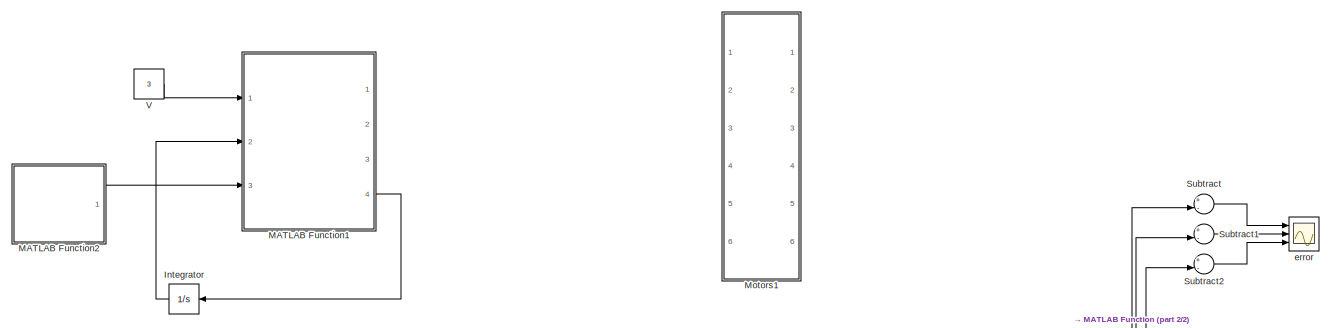
[diagram: root canvas - part 1/2, full width, top band]
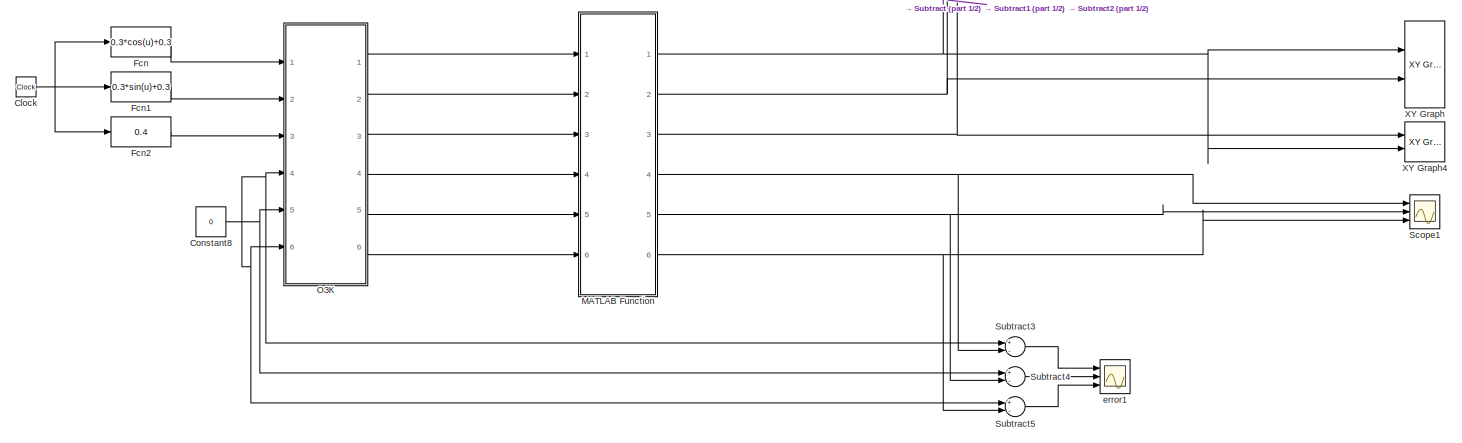
[diagram: root canvas - part 2/2, full width, bottom band]
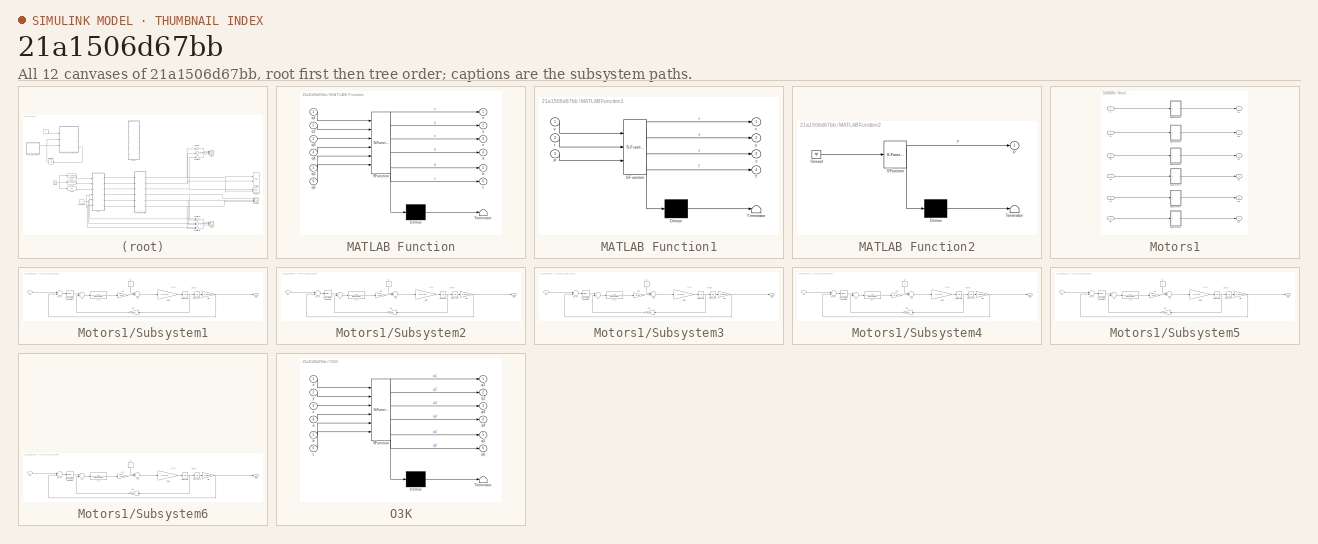
[diagram: thumbnail index - all 12 canvases of the model, root first then tree order]
MODEL slx_21a1506d67bb
KIND model
CONFIG AbsTol = auto
CONFIG EnableMultiTasking = off
CONFIG FixedStep = auto
CONFIG MaxStep = auto
CONFIG MinStep = auto
CONFIG RelTol = 1e-3
CONFIG SampleTimeConstraint = Unconstrained
CONFIG Solver = VariableStepAuto
CONFIG SolverName = VariableStepAuto
CONFIG StartTime = 0.0
CONFIG StopTime = 10
BLOCK [Clock] Clock
BLOCK [Constant] Constant8
  Value = 0
BLOCK [Fcn] Fcn
  Expr = 0.3*cos(u)+0.3
BLOCK [Fcn] Fcn1
  Expr = 0.3*sin(u)+0.3
BLOCK [Fcn] Fcn2
  Expr = 0.4
BLOCK [Integrator] Integrator
  Ports = [1, 1]
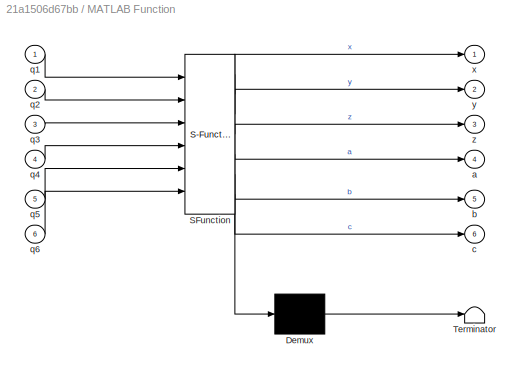
BLOCK [SubSystem] MATLAB Function
  ErrorFcn = Stateflow.Translate.translate
  PermitHierarchicalResolution = ExplicitOnly
  Ports = [6, 6]
  RequestExecContextInheritance = off
  SFBlockType = MATLAB Function
  TreatAsAtomicUnit = on
BLOCK [Demux] MATLAB Function/ Demux 
  Outputs = 1
  Ports = [1, 1]
BLOCK [S-Function] MATLAB Function/ SFunction 
  EnableBusSupport = on
  FunctionName = sf_sfun
  PortCounts = [6 7]
  Ports = [6, 7]
  SFcnIsStateOwnerBlock = off
  SFunctionDeploymentMode = off
  Tag = Stateflow S-Function main 2
BLOCK [Terminator] MATLAB Function/ Terminator 
BLOCK [Outport] MATLAB Function/a
  IconDisplay = Port number
  Port = 4
BLOCK [Outport] MATLAB Function/b
  IconDisplay = Port number
  Port = 5
BLOCK [Outport] MATLAB Function/c
  IconDisplay = Port number
  Port = 6
BLOCK [Inport] MATLAB Function/q1
  IconDisplay = Port number
BLOCK [Inport] MATLAB Function/q2
  IconDisplay = Port number
  Port = 2
BLOCK [Inport] MATLAB Function/q3
  IconDisplay = Port number
  Port = 3
BLOCK [Inport] MATLAB Function/q4
  IconDisplay = Port number
  Port = 4
BLOCK [Inport] MATLAB Function/q5
  IconDisplay = Port number
  Port = 5
BLOCK [Inport] MATLAB Function/q6
  IconDisplay = Port number
  Port = 6
BLOCK [Outport] MATLAB Function/x
  IconDisplay = Port number
BLOCK [Outport] MATLAB Function/y
  IconDisplay = Port number
  Port = 2
BLOCK [Outport] MATLAB Function/z
  IconDisplay = Port number
  Port = 3
BLOCK [SubSystem] MATLAB Function1
  ErrorFcn = Stateflow.Translate.translate
  PermitHierarchicalResolution = ExplicitOnly
  Ports = [3, 4]
  RequestExecContextInheritance = off
  SFBlockType = MATLAB Function
  TreatAsAtomicUnit = on
BLOCK [Demux] MATLAB Function1/ Demux 
  Outputs = 1
  Ports = [1, 1]
BLOCK [S-Function] MATLAB Function1/ SFunction 
  EnableBusSupport = on
  FunctionName = sf_sfun
  PortCounts = [3 5]
  Ports = [3, 5]
  SFcnIsStateOwnerBlock = off
  SFunctionDeploymentMode = off
  Tag = Stateflow S-Function main 3
BLOCK [Terminator] MATLAB Function1/ Terminator 
BLOCK [Inport] MATLAB Function1/P
  IconDisplay = Port number
  Port = 3
BLOCK [Outport] MATLAB Function1/T
  IconDisplay = Port number
  Port = 4
BLOCK [Inport] MATLAB Function1/t
  IconDisplay = Port number
  Port = 2
BLOCK [Inport] MATLAB Function1/v
  IconDisplay = Port number
BLOCK [Outport] MATLAB Function1/x
  IconDisplay = Port number
BLOCK [Outport] MATLAB Function1/y
  IconDisplay = Port number
  Port = 2
BLOCK [Outport] MATLAB Function1/z
  IconDisplay = Port number
  Port = 3
BLOCK [SubSystem] MATLAB Function2
  ErrorFcn = Stateflow.Translate.translate
  PermitHierarchicalResolution = ExplicitOnly
  Ports = [0, 1]
  RequestExecContextInheritance = off
  SFBlockType = MATLAB Function
  TreatAsAtomicUnit = on
BLOCK [Demux] MATLAB Function2/ Demux 
  Outputs = 1
  Ports = [1, 1]
BLOCK [Ground] MATLAB Function2/ Ground 
BLOCK [S-Function] MATLAB Function2/ SFunction 
  EnableBusSupport = on
  FunctionName = sf_sfun
  PortCounts = [1 2]
  Ports = [1, 2]
  SFcnIsStateOwnerBlock = off
  SFunctionDeploymentMode = off
  Tag = Stateflow S-Function main 4
BLOCK [Terminator] MATLAB Function2/ Terminator 
BLOCK [Outport] MATLAB Function2/P
  IconDisplay = Port number
BLOCK [SubSystem] Motors1
  Ports = [6, 6]
  RequestExecContextInheritance = off
BLOCK [SubSystem] Motors1/Subsystem1
  Ports = [1, 1]
  RequestExecContextInheritance = off
BLOCK [Gain] Motors1/Subsystem1/1//iR
  Gain = 1/102.5
  OutDataTypeStr = Inherit: Inherit via internal rule
  ParamDataTypeStr = Inherit: Inherit via internal rule
  SaturateOnIntegerOverflow = off
BLOCK [Sum] Motors1/Subsystem1/Add
  InputSameDT = off
  Inputs = -+
  OutDataTypeStr = Inherit: Inherit via internal rule
  Ports = [2, 1]
  SaturateOnIntegerOverflow = off
BLOCK [Reference] Motors1/Subsystem1/Discrete PID Controller  REF=simulink/Continuous/PID Controller
  Ports = [1, 1]
  SourceBlock = simulink/Continuous/PID Controller
  SourceProductBaseCode = SL
  SourceProductName = Simulink
  SourceType = PID 1dof
BLOCK [Sum] Motors1/Subsystem1/Error 
  InputSameDT = off
  Inputs = +-
  OutDataTypeStr = Inherit: Inherit via internal rule
  Ports = [2, 1]
  SaturateOnIntegerOverflow = off
BLOCK [Gain] Motors1/Subsystem1/Gain
  Gain = 1/(3.5*0.0001)
  OutDataTypeStr = Inherit: Inherit via internal rule
  ParamDataTypeStr = Inherit: Inherit via internal rule
  SaturateOnIntegerOverflow = off
BLOCK [Inport] Motors1/Subsystem1/In2
  IconDisplay = Port number
BLOCK [Integrator] Motors1/Subsystem1/Integrator
  Ports = [1, 1]
BLOCK [Integrator] Motors1/Subsystem1/Integrator1
  InitialCondition = 1.1618*102.5
  Ports = [1, 1]
BLOCK [Gain] Motors1/Subsystem1/Km
  Gain = 0.07
  OutDataTypeStr = Inherit: Inherit via internal rule
  ParamDataTypeStr = Inherit: Inherit via internal rule
  SaturateOnIntegerOverflow = off
BLOCK [Gain] Motors1/Subsystem1/Kw
  Gain = 0.07
  OutDataTypeStr = Inherit: Inherit via internal rule
  ParamDataTypeStr = Inherit: Inherit via internal rule
  SaturateOnIntegerOverflow = off
BLOCK [Constant] Motors1/Subsystem1/M 
  Value = 0
BLOCK [Outport] Motors1/Subsystem1/Out2
  IconDisplay = Port number
BLOCK [Sum] Motors1/Subsystem1/U
  InputSameDT = off
  Inputs = +-
  OutDataTypeStr = Inherit: Inherit via internal rule
  Ports = [2, 1]
  SaturateOnIntegerOverflow = off
BLOCK [TransferFcn] Motors1/Subsystem1/U->I
  Denominator = [0.0075 0.85]
BLOCK [SubSystem] Motors1/Subsystem2
  Ports = [1, 1]
  RequestExecContextInheritance = off
BLOCK [Gain] Motors1/Subsystem2/1//iR
  Gain = 1/102.5
  OutDataTypeStr = Inherit: Inherit via internal rule
  ParamDataTypeStr = Inherit: Inherit via internal rule
  SaturateOnIntegerOverflow = off
BLOCK [Sum] Motors1/Subsystem2/Add
  InputSameDT = off
  Inputs = -+
  OutDataTypeStr = Inherit: Inherit via internal rule
  Ports = [2, 1]
  SaturateOnIntegerOverflow = off
BLOCK [Reference] Motors1/Subsystem2/Discrete PID Controller  REF=simulink/Continuous/PID Controller
  Ports = [1, 1]
  SourceBlock = simulink/Continuous/PID Controller
  SourceProductBaseCode = SL
  SourceProductName = Simulink
  SourceType = PID 1dof
BLOCK [Sum] Motors1/Subsystem2/Error 
  InputSameDT = off
  Inputs = +-
  OutDataTypeStr = Inherit: Inherit via internal rule
  Ports = [2, 1]
  SaturateOnIntegerOverflow = off
BLOCK [Gain] Motors1/Subsystem2/Gain
  Gain = 1/(3.5*0.0001)
  OutDataTypeStr = Inherit: Inherit via internal rule
  ParamDataTypeStr = Inherit: Inherit via internal rule
  SaturateOnIntegerOverflow = off
BLOCK [Inport] Motors1/Subsystem2/In2
  IconDisplay = Port number
BLOCK [Integrator] Motors1/Subsystem2/Integrator
  Ports = [1, 1]
BLOCK [Integrator] Motors1/Subsystem2/Integrator1
  InitialCondition = 1.1618*102.5
  Ports = [1, 1]
BLOCK [Gain] Motors1/Subsystem2/Km
  Gain = 0.07
  OutDataTypeStr = Inherit: Inherit via internal rule
  ParamDataTypeStr = Inherit: Inherit via internal rule
  SaturateOnIntegerOverflow = off
BLOCK [Gain] Motors1/Subsystem2/Kw
  Gain = 0.07
  OutDataTypeStr = Inherit: Inherit via internal rule
  ParamDataTypeStr = Inherit: Inherit via internal rule
  SaturateOnIntegerOverflow = off
BLOCK [Constant] Motors1/Subsystem2/M 
  Value = 0
BLOCK [Outport] Motors1/Subsystem2/Out2
  IconDisplay = Port number
BLOCK [Sum] Motors1/Subsystem2/U
  InputSameDT = off
  Inputs = +-
  OutDataTypeStr = Inherit: Inherit via internal rule
  Ports = [2, 1]
  SaturateOnIntegerOverflow = off
BLOCK [TransferFcn] Motors1/Subsystem2/U->I
  Denominator = [0.0075 0.85]
BLOCK [SubSystem] Motors1/Subsystem3
  Ports = [1, 1]
  RequestExecContextInheritance = off
BLOCK [Gain] Motors1/Subsystem3/1//iR
  Gain = 1/102.5
  OutDataTypeStr = Inherit: Inherit via internal rule
  ParamDataTypeStr = Inherit: Inherit via internal rule
  SaturateOnIntegerOverflow = off
BLOCK [Sum] Motors1/Subsystem3/Add
  InputSameDT = off
  Inputs = -+
  OutDataTypeStr = Inherit: Inherit via internal rule
  Ports = [2, 1]
  SaturateOnIntegerOverflow = off
BLOCK [Reference] Motors1/Subsystem3/Discrete PID Controller  REF=simulink/Continuous/PID Controller
  Ports = [1, 1]
  SourceBlock = simulink/Continuous/PID Controller
  SourceProductBaseCode = SL
  SourceProductName = Simulink
  SourceType = PID 1dof
BLOCK [Sum] Motors1/Subsystem3/Error 
  InputSameDT = off
  Inputs = +-
  OutDataTypeStr = Inherit: Inherit via internal rule
  Ports = [2, 1]
  SaturateOnIntegerOverflow = off
BLOCK [Gain] Motors1/Subsystem3/Gain
  Gain = 1/(3.5*0.0001)
  OutDataTypeStr = Inherit: Inherit via internal rule
  ParamDataTypeStr = Inherit: Inherit via internal rule
  SaturateOnIntegerOverflow = off
BLOCK [Inport] Motors1/Subsystem3/In2
  IconDisplay = Port number
BLOCK [Integrator] Motors1/Subsystem3/Integrator
  Ports = [1, 1]
BLOCK [Integrator] Motors1/Subsystem3/Integrator1
  InitialCondition = 1.1618*102.5
  Ports = [1, 1]
BLOCK [Gain] Motors1/Subsystem3/Km
  Gain = 0.07
  OutDataTypeStr = Inherit: Inherit via internal rule
  ParamDataTypeStr = Inherit: Inherit via internal rule
  SaturateOnIntegerOverflow = off
BLOCK [Gain] Motors1/Subsystem3/Kw
  Gain = 0.07
  OutDataTypeStr = Inherit: Inherit via internal rule
  ParamDataTypeStr = Inherit: Inherit via internal rule
  SaturateOnIntegerOverflow = off
BLOCK [Constant] Motors1/Subsystem3/M 
  Value = 0
BLOCK [Outport] Motors1/Subsystem3/Out2
  IconDisplay = Port number
BLOCK [Sum] Motors1/Subsystem3/U
  InputSameDT = off
  Inputs = +-
  OutDataTypeStr = Inherit: Inherit via internal rule
  Ports = [2, 1]
  SaturateOnIntegerOverflow = off
BLOCK [TransferFcn] Motors1/Subsystem3/U->I
  Denominator = [0.0075 0.85]
BLOCK [SubSystem] Motors1/Subsystem4
  Ports = [1, 1]
  RequestExecContextInheritance = off
BLOCK [Gain] Motors1/Subsystem4/1//iR
  Gain = 1/102.5
  OutDataTypeStr = Inherit: Inherit via internal rule
  ParamDataTypeStr = Inherit: Inherit via internal rule
  SaturateOnIntegerOverflow = off
BLOCK [Sum] Motors1/Subsystem4/Add
  InputSameDT = off
  Inputs = -+
  OutDataTypeStr = Inherit: Inherit via internal rule
  Ports = [2, 1]
  SaturateOnIntegerOverflow = off
BLOCK [Reference] Motors1/Subsystem4/Discrete PID Controller  REF=simulink/Continuous/PID Controller
  Ports = [1, 1]
  SourceBlock = simulink/Continuous/PID Controller
  SourceProductBaseCode = SL
  SourceProductName = Simulink
  SourceType = PID 1dof
BLOCK [Sum] Motors1/Subsystem4/Error 
  InputSameDT = off
  Inputs = +-
  OutDataTypeStr = Inherit: Inherit via internal rule
  Ports = [2, 1]
  SaturateOnIntegerOverflow = off
BLOCK [Gain] Motors1/Subsystem4/Gain
  Gain = 1/(3.5*0.0001)
  OutDataTypeStr = Inherit: Inherit via internal rule
  ParamDataTypeStr = Inherit: Inherit via internal rule
  SaturateOnIntegerOverflow = off
BLOCK [Inport] Motors1/Subsystem4/In2
  IconDisplay = Port number
BLOCK [Integrator] Motors1/Subsystem4/Integrator
  Ports = [1, 1]
BLOCK [Integrator] Motors1/Subsystem4/Integrator1
  InitialCondition = 1.1618*102.5
  Ports = [1, 1]
BLOCK [Gain] Motors1/Subsystem4/Km
  Gain = 0.07
  OutDataTypeStr = Inherit: Inherit via internal rule
  ParamDataTypeStr = Inherit: Inherit via internal rule
  SaturateOnIntegerOverflow = off
BLOCK [Gain] Motors1/Subsystem4/Kw
  Gain = 0.07
  OutDataTypeStr = Inherit: Inherit via internal rule
  ParamDataTypeStr = Inherit: Inherit via internal rule
  SaturateOnIntegerOverflow = off
BLOCK [Constant] Motors1/Subsystem4/M 
  Value = 0
BLOCK [Outport] Motors1/Subsystem4/Out2
  IconDisplay = Port number
BLOCK [Sum] Motors1/Subsystem4/U
  InputSameDT = off
  Inputs = +-
  OutDataTypeStr = Inherit: Inherit via internal rule
  Ports = [2, 1]
  SaturateOnIntegerOverflow = off
BLOCK [TransferFcn] Motors1/Subsystem4/U->I
  Denominator = [0.0075 0.85]
BLOCK [SubSystem] Motors1/Subsystem5
  Ports = [1, 1]
  RequestExecContextInheritance = off
BLOCK [Gain] Motors1/Subsystem5/1//iR
  Gain = 1/102.5
  OutDataTypeStr = Inherit: Inherit via internal rule
  ParamDataTypeStr = Inherit: Inherit via internal rule
  SaturateOnIntegerOverflow = off
BLOCK [Sum] Motors1/Subsystem5/Add
  InputSameDT = off
  Inputs = -+
  OutDataTypeStr = Inherit: Inherit via internal rule
  Ports = [2, 1]
  SaturateOnIntegerOverflow = off
BLOCK [Reference] Motors1/Subsystem5/Discrete PID Controller  REF=simulink/Continuous/PID Controller
  Ports = [1, 1]
  SourceBlock = simulink/Continuous/PID Controller
  SourceProductBaseCode = SL
  SourceProductName = Simulink
  SourceType = PID 1dof
BLOCK [Sum] Motors1/Subsystem5/Error 
  InputSameDT = off
  Inputs = +-
  OutDataTypeStr = Inherit: Inherit via internal rule
  Ports = [2, 1]
  SaturateOnIntegerOverflow = off
BLOCK [Gain] Motors1/Subsystem5/Gain
  Gain = 1/(3.5*0.0001)
  OutDataTypeStr = Inherit: Inherit via internal rule
  ParamDataTypeStr = Inherit: Inherit via internal rule
  SaturateOnIntegerOverflow = off
BLOCK [Inport] Motors1/Subsystem5/In2
  IconDisplay = Port number
BLOCK [Integrator] Motors1/Subsystem5/Integrator
  Ports = [1, 1]
BLOCK [Integrator] Motors1/Subsystem5/Integrator1
  InitialCondition = 1.1618*102.5
  Ports = [1, 1]
BLOCK [Gain] Motors1/Subsystem5/Km
  Gain = 0.07
  OutDataTypeStr = Inherit: Inherit via internal rule
  ParamDataTypeStr = Inherit: Inherit via internal rule
  SaturateOnIntegerOverflow = off
BLOCK [Gain] Motors1/Subsystem5/Kw
  Gain = 0.07
  OutDataTypeStr = Inherit: Inherit via internal rule
  ParamDataTypeStr = Inherit: Inherit via internal rule
  SaturateOnIntegerOverflow = off
BLOCK [Constant] Motors1/Subsystem5/M 
  Value = 0
BLOCK [Outport] Motors1/Subsystem5/Out2
  IconDisplay = Port number
BLOCK [Sum] Motors1/Subsystem5/U
  InputSameDT = off
  Inputs = +-
  OutDataTypeStr = Inherit: Inherit via internal rule
  Ports = [2, 1]
  SaturateOnIntegerOverflow = off
BLOCK [TransferFcn] Motors1/Subsystem5/U->I
  Denominator = [0.0075 0.85]
BLOCK [SubSystem] Motors1/Subsystem6
  Ports = [1, 1]
  RequestExecContextInheritance = off
BLOCK [Gain] Motors1/Subsystem6/1//iR
  Gain = 1/102.5
  OutDataTypeStr = Inherit: Inherit via internal rule
  ParamDataTypeStr = Inherit: Inherit via internal rule
  SaturateOnIntegerOverflow = off
BLOCK [Sum] Motors1/Subsystem6/Add
  InputSameDT = off
  Inputs = -+
  OutDataTypeStr = Inherit: Inherit via internal rule
  Ports = [2, 1]
  SaturateOnIntegerOverflow = off
BLOCK [Reference] Motors1/Subsystem6/Discrete PID Controller  REF=simulink/Continuous/PID Controller
  Ports = [1, 1]
  SourceBlock = simulink/Continuous/PID Controller
  SourceProductBaseCode = SL
  SourceProductName = Simulink
  SourceType = PID 1dof
BLOCK [Sum] Motors1/Subsystem6/Error 
  InputSameDT = off
  Inputs = +-
  OutDataTypeStr = Inherit: Inherit via internal rule
  Ports = [2, 1]
  SaturateOnIntegerOverflow = off
BLOCK [Gain] Motors1/Subsystem6/Gain
  Gain = 1/(3.5*0.0001)
  OutDataTypeStr = Inherit: Inherit via internal rule
  ParamDataTypeStr = Inherit: Inherit via internal rule
  SaturateOnIntegerOverflow = off
BLOCK [Inport] Motors1/Subsystem6/In2
  IconDisplay = Port number
BLOCK [Integrator] Motors1/Subsystem6/Integrator
  Ports = [1, 1]
BLOCK [Integrator] Motors1/Subsystem6/Integrator1
  InitialCondition = 1.1618*102.5
  Ports = [1, 1]
BLOCK [Gain] Motors1/Subsystem6/Km
  Gain = 0.07
  OutDataTypeStr = Inherit: Inherit via internal rule
  ParamDataTypeStr = Inherit: Inherit via internal rule
  SaturateOnIntegerOverflow = off
BLOCK [Gain] Motors1/Subsystem6/Kw
  Gain = 0.07
  OutDataTypeStr = Inherit: Inherit via internal rule
  ParamDataTypeStr = Inherit: Inherit via internal rule
  SaturateOnIntegerOverflow = off
BLOCK [Constant] Motors1/Subsystem6/M 
  Value = 0
BLOCK [Outport] Motors1/Subsystem6/Out2
  IconDisplay = Port number
BLOCK [Sum] Motors1/Subsystem6/U
  InputSameDT = off
  Inputs = +-
  OutDataTypeStr = Inherit: Inherit via internal rule
  Ports = [2, 1]
  SaturateOnIntegerOverflow = off
BLOCK [TransferFcn] Motors1/Subsystem6/U->I
  Denominator = [0.0075 0.85]
BLOCK [Inport] Motors1/X
  IconDisplay = Port number
BLOCK [Inport] Motors1/X1
  IconDisplay = Port number
  Port = 2
BLOCK [Inport] Motors1/X2
  IconDisplay = Port number
  Port = 3
BLOCK [Inport] Motors1/X3
  IconDisplay = Port number
  Port = 4
BLOCK [Inport] Motors1/X4
  IconDisplay = Port number
  Port = 5
BLOCK [Inport] Motors1/X5
  IconDisplay = Port number
  Port = 6
BLOCK [Outport] Motors1/q1
  IconDisplay = Port number
BLOCK [Outport] Motors1/q2
  IconDisplay = Port number
  Port = 2
BLOCK [Outport] Motors1/q3
  IconDisplay = Port number
  Port = 3
BLOCK [Outport] Motors1/q4
  IconDisplay = Port number
  Port = 4
BLOCK [Outport] Motors1/q5
  IconDisplay = Port number
  Port = 5
BLOCK [Outport] Motors1/q6
  IconDisplay = Port number
  Port = 6
BLOCK [Scope] Scope1
  Floating = off
  NumInputPorts = 3
  Ports = [3]
  ScopeSpecificationString = Simulink.scopes.TimeScopeBlockCfg('CurrentConfiguration', extmgr.ConfigurationSet(extmgr.Configuration('Core','General UI',true),extmgr.Configuration('Core','Source UI',true),extmgr.Configuration('Sources','WiredSimulink',true,'DataLoggingVariableName','ScopeData1'),extmgr.Configuration('Visuals','Time Domain',true,'SerializedDisplays',{struct('MinYLimReal','-3.92459','MaxYLimReal','3.90575','YLab...<+1416ch>
BLOCK [Sum] Subtract
  InputSameDT = off
  Inputs = +-
  OutDataTypeStr = Inherit: Inherit via internal rule
  Ports = [2, 1]
  SaturateOnIntegerOverflow = off
BLOCK [Sum] Subtract1
  InputSameDT = off
  Inputs = +-
  OutDataTypeStr = Inherit: Inherit via internal rule
  Ports = [2, 1]
  SaturateOnIntegerOverflow = off
BLOCK [Sum] Subtract2
  InputSameDT = off
  Inputs = +-
  OutDataTypeStr = Inherit: Inherit via internal rule
  Ports = [2, 1]
  SaturateOnIntegerOverflow = off
BLOCK [Sum] Subtract3
  InputSameDT = off
  Inputs = +-
  OutDataTypeStr = Inherit: Inherit via internal rule
  Ports = [2, 1]
  SaturateOnIntegerOverflow = off
BLOCK [Sum] Subtract4
  InputSameDT = off
  Inputs = +-
  OutDataTypeStr = Inherit: Inherit via internal rule
  Ports = [2, 1]
  SaturateOnIntegerOverflow = off
BLOCK [Sum] Subtract5
  InputSameDT = off
  Inputs = +-
  OutDataTypeStr = Inherit: Inherit via internal rule
  Ports = [2, 1]
  SaturateOnIntegerOverflow = off
BLOCK [Constant] V
  Value = 3
BLOCK [Reference] XY Graph  REF=simulink/Sinks/XY Graph
  Ports = [2]
  SourceBlock = simulink/Sinks/XY Graph
  SourceProductBaseCode = SL
  SourceProductName = Simulink
  SourceType = XY scope.
BLOCK [Reference] XY Graph4  REF=simulink/Sinks/XY Graph
  Ports = [2]
  SourceBlock = simulink/Sinks/XY Graph
  SourceProductBaseCode = SL
  SourceProductName = Simulink
  SourceType = XY scope.
BLOCK [Scope] error
  Floating = off
  NumInputPorts = 3
  Ports = [3]
  ScopeSpecificationString = Simulink.scopes.TimeScopeBlockCfg('CurrentConfiguration', extmgr.ConfigurationSet(extmgr.Configuration('Core','General UI',true),extmgr.Configuration('Core','Source UI',true),extmgr.Configuration('Sources','WiredSimulink',true,'DataLoggingVariableName','ScopeData1'),extmgr.Configuration('Visuals','Time Domain',true,'SerializedDisplays',{struct('MinYLimReal','-0.74287','MaxYLimReal','0.08531','YLab...<+1391ch>
BLOCK [Scope] error1
  Floating = off
  NumInputPorts = 3
  Ports = [3]
  ScopeSpecificationString = Simulink.scopes.TimeScopeBlockCfg('CurrentConfiguration', extmgr.ConfigurationSet(extmgr.Configuration('Core','General UI',true),extmgr.Configuration('Core','Source UI',true),extmgr.Configuration('Sources','WiredSimulink',true,'DataLoggingVariableName','ScopeData2'),extmgr.Configuration('Visuals','Time Domain',true,'SerializedDisplays',{struct('MinYLimReal','-3.91024','MaxYLimReal','3.92374','YLab...<+1392ch>
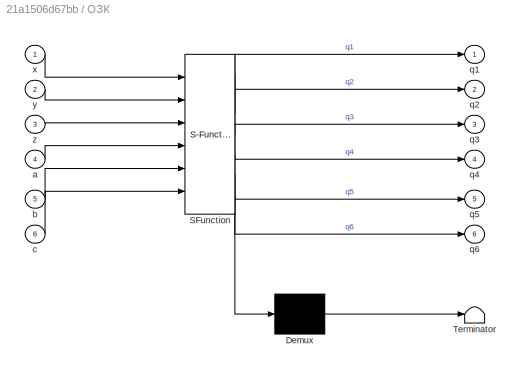
BLOCK [SubSystem] ОЗК
  ErrorFcn = Stateflow.Translate.translate
  PermitHierarchicalResolution = ExplicitOnly
  Ports = [6, 6]
  RequestExecContextInheritance = off
  SFBlockType = MATLAB Function
  TreatAsAtomicUnit = on
BLOCK [Demux] ОЗК/ Demux 
  Outputs = 1
  Ports = [1, 1]
BLOCK [S-Function] ОЗК/ SFunction 
  EnableBusSupport = on
  FunctionName = sf_sfun
  PortCounts = [6 7]
  Ports = [6, 7]
  SFcnIsStateOwnerBlock = off
  SFunctionDeploymentMode = off
  Tag = Stateflow S-Function main 1
BLOCK [Terminator] ОЗК/ Terminator 
BLOCK [Inport] ОЗК/a
  IconDisplay = Port number
  Port = 4
BLOCK [Inport] ОЗК/b
  IconDisplay = Port number
  Port = 5
BLOCK [Inport] ОЗК/c
  IconDisplay = Port number
  Port = 6
BLOCK [Outport] ОЗК/q1
  IconDisplay = Port number
BLOCK [Outport] ОЗК/q2
  IconDisplay = Port number
  Port = 2
BLOCK [Outport] ОЗК/q3
  IconDisplay = Port number
  Port = 3
BLOCK [Outport] ОЗК/q4
  IconDisplay = Port number
  Port = 4
BLOCK [Outport] ОЗК/q5
  IconDisplay = Port number
  Port = 5
BLOCK [Outport] ОЗК/q6
  IconDisplay = Port number
  Port = 6
BLOCK [Inport] ОЗК/x
  IconDisplay = Port number
BLOCK [Inport] ОЗК/y
  IconDisplay = Port number
  Port = 2
BLOCK [Inport] ОЗК/z
  IconDisplay = Port number
  Port = 3
ANNOTATION Motors1/Subsystem1: Accel
ANNOTATION Motors1/Subsystem1: Speed
ANNOTATION Motors1/Subsystem2: Accel
ANNOTATION Motors1/Subsystem2: Speed
ANNOTATION Motors1/Subsystem3: Accel
ANNOTATION Motors1/Subsystem3: Speed
ANNOTATION Motors1/Subsystem4: Accel
ANNOTATION Motors1/Subsystem4: Speed
ANNOTATION Motors1/Subsystem5: Accel
ANNOTATION Motors1/Subsystem5: Speed
ANNOTATION Motors1/Subsystem6: Accel
ANNOTATION Motors1/Subsystem6: Speed
NET Clock:1 -> Fcn1:1, Fcn2:1, Fcn:1
NET Constant8:1 -> Subtract3:1, Subtract4:1, Subtract5:1, ОЗК:4, ОЗК:5, ОЗК:6
LINE Fcn1:1 -> ОЗК:2
LINE Fcn2:1 -> ОЗК:3
LINE Fcn:1 -> ОЗК:1
LINE Integrator:1 -> MATLAB Function1:2
LINE MATLAB Function1:4 -> Integrator:1
LINE MATLAB Function2:1 -> MATLAB Function1:3
NET MATLAB Function:1 -> Subtract:2, XY Graph4:2, XY Graph:1
NET MATLAB Function:2 -> Subtract1:2, XY Graph:2
NET MATLAB Function:3 -> Subtract2:2, XY Graph4:1
NET MATLAB Function:4 -> Scope1:1, Subtract3:2
NET MATLAB Function:5 -> Scope1:2, Subtract4:2
NET MATLAB Function:6 -> Scope1:3, Subtract5:2
NET Motors1/Subsystem1/1//iR:1 -> Motors1/Subsystem1/Error :2, Motors1/Subsystem1/Out2:1
LINE Motors1/Subsystem1/Add:1 -> Motors1/Subsystem1/Gain:1
LINE Motors1/Subsystem1/Discrete PID Controller:1 -> Motors1/Subsystem1/U:1
LINE Motors1/Subsystem1/Error :1 -> Motors1/Subsystem1/Discrete PID Controller:1
LINE Motors1/Subsystem1/Gain:1 -> Motors1/Subsystem1/Integrator:1
LINE Motors1/Subsystem1/In2:1 -> Motors1/Subsystem1/Error :1
LINE Motors1/Subsystem1/Integrator1:1 -> Motors1/Subsystem1/1//iR:1
NET Motors1/Subsystem1/Integrator:1 -> Motors1/Subsystem1/Integrator1:1, Motors1/Subsystem1/Kw:1
LINE Motors1/Subsystem1/Km:1 -> Motors1/Subsystem1/Add:2
LINE Motors1/Subsystem1/Kw:1 -> Motors1/Subsystem1/U:2
LINE Motors1/Subsystem1/M :1 -> Motors1/Subsystem1/Add:1
LINE Motors1/Subsystem1/U->I:1 -> Motors1/Subsystem1/Km:1
LINE Motors1/Subsystem1/U:1 -> Motors1/Subsystem1/U->I:1
LINE Motors1/Subsystem1:1 -> Motors1/q1:1
NET Motors1/Subsystem2/1//iR:1 -> Motors1/Subsystem2/Error :2, Motors1/Subsystem2/Out2:1
LINE Motors1/Subsystem2/Add:1 -> Motors1/Subsystem2/Gain:1
LINE Motors1/Subsystem2/Discrete PID Controller:1 -> Motors1/Subsystem2/U:1
LINE Motors1/Subsystem2/Error :1 -> Motors1/Subsystem2/Discrete PID Controller:1
LINE Motors1/Subsystem2/Gain:1 -> Motors1/Subsystem2/Integrator:1
LINE Motors1/Subsystem2/In2:1 -> Motors1/Subsystem2/Error :1
LINE Motors1/Subsystem2/Integrator1:1 -> Motors1/Subsystem2/1//iR:1
NET Motors1/Subsystem2/Integrator:1 -> Motors1/Subsystem2/Integrator1:1, Motors1/Subsystem2/Kw:1
LINE Motors1/Subsystem2/Km:1 -> Motors1/Subsystem2/Add:2
LINE Motors1/Subsystem2/Kw:1 -> Motors1/Subsystem2/U:2
LINE Motors1/Subsystem2/M :1 -> Motors1/Subsystem2/Add:1
LINE Motors1/Subsystem2/U->I:1 -> Motors1/Subsystem2/Km:1
LINE Motors1/Subsystem2/U:1 -> Motors1/Subsystem2/U->I:1
LINE Motors1/Subsystem2:1 -> Motors1/q3:1
NET Motors1/Subsystem3/1//iR:1 -> Motors1/Subsystem3/Error :2, Motors1/Subsystem3/Out2:1
LINE Motors1/Subsystem3/Add:1 -> Motors1/Subsystem3/Gain:1
LINE Motors1/Subsystem3/Discrete PID Controller:1 -> Motors1/Subsystem3/U:1
LINE Motors1/Subsystem3/Error :1 -> Motors1/Subsystem3/Discrete PID Controller:1
LINE Motors1/Subsystem3/Gain:1 -> Motors1/Subsystem3/Integrator:1
LINE Motors1/Subsystem3/In2:1 -> Motors1/Subsystem3/Error :1
LINE Motors1/Subsystem3/Integrator1:1 -> Motors1/Subsystem3/1//iR:1
NET Motors1/Subsystem3/Integrator:1 -> Motors1/Subsystem3/Integrator1:1, Motors1/Subsystem3/Kw:1
LINE Motors1/Subsystem3/Km:1 -> Motors1/Subsystem3/Add:2
LINE Motors1/Subsystem3/Kw:1 -> Motors1/Subsystem3/U:2
LINE Motors1/Subsystem3/M :1 -> Motors1/Subsystem3/Add:1
LINE Motors1/Subsystem3/U->I:1 -> Motors1/Subsystem3/Km:1
LINE Motors1/Subsystem3/U:1 -> Motors1/Subsystem3/U->I:1
LINE Motors1/Subsystem3:1 -> Motors1/q4:1
NET Motors1/Subsystem4/1//iR:1 -> Motors1/Subsystem4/Error :2, Motors1/Subsystem4/Out2:1
LINE Motors1/Subsystem4/Add:1 -> Motors1/Subsystem4/Gain:1
LINE Motors1/Subsystem4/Discrete PID Controller:1 -> Motors1/Subsystem4/U:1
LINE Motors1/Subsystem4/Error :1 -> Motors1/Subsystem4/Discrete PID Controller:1
LINE Motors1/Subsystem4/Gain:1 -> Motors1/Subsystem4/Integrator:1
LINE Motors1/Subsystem4/In2:1 -> Motors1/Subsystem4/Error :1
LINE Motors1/Subsystem4/Integrator1:1 -> Motors1/Subsystem4/1//iR:1
NET Motors1/Subsystem4/Integrator:1 -> Motors1/Subsystem4/Integrator1:1, Motors1/Subsystem4/Kw:1
LINE Motors1/Subsystem4/Km:1 -> Motors1/Subsystem4/Add:2
LINE Motors1/Subsystem4/Kw:1 -> Motors1/Subsystem4/U:2
LINE Motors1/Subsystem4/M :1 -> Motors1/Subsystem4/Add:1
LINE Motors1/Subsystem4/U->I:1 -> Motors1/Subsystem4/Km:1
LINE Motors1/Subsystem4/U:1 -> Motors1/Subsystem4/U->I:1
LINE Motors1/Subsystem4:1 -> Motors1/q5:1
NET Motors1/Subsystem5/1//iR:1 -> Motors1/Subsystem5/Error :2, Motors1/Subsystem5/Out2:1
LINE Motors1/Subsystem5/Add:1 -> Motors1/Subsystem5/Gain:1
LINE Motors1/Subsystem5/Discrete PID Controller:1 -> Motors1/Subsystem5/U:1
LINE Motors1/Subsystem5/Error :1 -> Motors1/Subsystem5/Discrete PID Controller:1
LINE Motors1/Subsystem5/Gain:1 -> Motors1/Subsystem5/Integrator:1
LINE Motors1/Subsystem5/In2:1 -> Motors1/Subsystem5/Error :1
LINE Motors1/Subsystem5/Integrator1:1 -> Motors1/Subsystem5/1//iR:1
NET Motors1/Subsystem5/Integrator:1 -> Motors1/Subsystem5/Integrator1:1, Motors1/Subsystem5/Kw:1
LINE Motors1/Subsystem5/Km:1 -> Motors1/Subsystem5/Add:2
LINE Motors1/Subsystem5/Kw:1 -> Motors1/Subsystem5/U:2
LINE Motors1/Subsystem5/M :1 -> Motors1/Subsystem5/Add:1
LINE Motors1/Subsystem5/U->I:1 -> Motors1/Subsystem5/Km:1
LINE Motors1/Subsystem5/U:1 -> Motors1/Subsystem5/U->I:1
LINE Motors1/Subsystem5:1 -> Motors1/q2:1
NET Motors1/Subsystem6/1//iR:1 -> Motors1/Subsystem6/Error :2, Motors1/Subsystem6/Out2:1
LINE Motors1/Subsystem6/Add:1 -> Motors1/Subsystem6/Gain:1
LINE Motors1/Subsystem6/Discrete PID Controller:1 -> Motors1/Subsystem6/U:1
LINE Motors1/Subsystem6/Error :1 -> Motors1/Subsystem6/Discrete PID Controller:1
LINE Motors1/Subsystem6/Gain:1 -> Motors1/Subsystem6/Integrator:1
LINE Motors1/Subsystem6/In2:1 -> Motors1/Subsystem6/Error :1
LINE Motors1/Subsystem6/Integrator1:1 -> Motors1/Subsystem6/1//iR:1
NET Motors1/Subsystem6/Integrator:1 -> Motors1/Subsystem6/Integrator1:1, Motors1/Subsystem6/Kw:1
LINE Motors1/Subsystem6/Km:1 -> Motors1/Subsystem6/Add:2
LINE Motors1/Subsystem6/Kw:1 -> Motors1/Subsystem6/U:2
LINE Motors1/Subsystem6/M :1 -> Motors1/Subsystem6/Add:1
LINE Motors1/Subsystem6/U->I:1 -> Motors1/Subsystem6/Km:1
LINE Motors1/Subsystem6/U:1 -> Motors1/Subsystem6/U->I:1
LINE Motors1/Subsystem6:1 -> Motors1/q6:1
LINE Motors1/X1:1 -> Motors1/Subsystem5:1
LINE Motors1/X2:1 -> Motors1/Subsystem2:1
LINE Motors1/X3:1 -> Motors1/Subsystem3:1
LINE Motors1/X4:1 -> Motors1/Subsystem4:1
LINE Motors1/X5:1 -> Motors1/Subsystem6:1
LINE Motors1/X:1 -> Motors1/Subsystem1:1
LINE Subtract1:1 -> error:2
LINE Subtract2:1 -> error:3
LINE Subtract3:1 -> error1:1
LINE Subtract4:1 -> error1:2
LINE Subtract5:1 -> error1:3
LINE Subtract:1 -> error:1
LINE V:1 -> MATLAB Function1:1
LINE ОЗК:1 -> MATLAB Function:1
LINE ОЗК:2 -> MATLAB Function:2
LINE ОЗК:3 -> MATLAB Function:3
LINE ОЗК:4 -> MATLAB Function:4
LINE ОЗК:5 -> MATLAB Function:5
LINE ОЗК:6 -> MATLAB Function:6
note: NET lines group one-source signal fan-out (src -> all destinations, sorted); 1:1 wires keep LINE
CHART ОЗК states=1 transitions=1
  STATE_LABEL 'eML_blk_kernel()'
  STATE_LABEL 'SCRIPT:\nfunction[q1,q2,q3,q4,q5,q6] = IK(x,y,z,a,b,c)\n%This function is used for inverse kinematics calculations.\n\n%link lenghts in mm\n\n\nd1=0.4865;\nd2=0.150;\nd3=0.475;\nd4=0.600;\nd6=0.065;\n\nalpha = [-pi/2, 0, -pi/2, pi/2, -pi/2, 0];\n% a = [d2 d3 0 0 0 0];\n% d = [d1 0 0 d4 0 d6];\n\n%%%%%%%%%%%%%%%%%Inverse kinematics%%%%%%%%%%%%%%%%%\n\nR06= [cos(a)*cos(b), cos(a)*sin(c)*sin(b)-sin(a)*cos(c), cos(a)*si...<+1711ch>'
CHART MATLAB Function states=1 transitions=1
  STATE_LABEL 'eML_blk_kernel()'
  STATE_LABEL 'SCRIPT:\nfunction [x,y,z,a,b,c] = DK(q1,q2,q3,q4,q5,q6)\n\n%   i       Link twist     Link Length     Link Offset    Joint Angle    \n%--------------------------------------------------------------------------\n%   1        -90              d2             d1                 theta1*     \n%   2         0               d3              0               theta2 - 90*  \n%   3        -90               0        ...<+1626ch>'
CHART MATLAB Function1 states=1 transitions=1
  STATE_LABEL 'eML_blk_kernel()'
  STATE_LABEL 'SCRIPT:\nfunction [x,y,z,T] = TargetPosition(v,t,P)\n\n  i=2;\n  for k = 1:1:length(P)-3\n    if (t>k)\n     i = k+2;\n    end\n  end\n  t = t - i+2;\n\n    Ak=zeros(1,3);\n    Bk=zeros(1,3);\n    Ck=zeros(1,3);\n    Dk=zeros(1,3);\n    F=zeros(1,3);\n    S=zeros(1,3);\n    \n    for j=1:3\n    Ak(j)=(-P(j,i-1)+3*P(j,i)-3*P(j,i+1)+P(j,i+2))/6;\n    Bk(j)=(3*P(j,i-1)-6*P(j,i)+3*P(j,i+1))/6;\n    Ck(j)=(-3*P(j,i-1)+3*P(...<+227ch>'
CHART MATLAB Function2 states=1 transitions=1
  STATE_LABEL 'eML_blk_kernel()'
  STATE_LABEL 'SCRIPT:\nfunction P = fcn()\n Px   = [10 12.5 15 15 15 12.5 10 7.5 5 5 5 7.5 10 12.5 15 15 15 12.5 10 7.5 5 5 5 7.5];\n Py   = [5 5 7.5 10 12.5 15 15 15 12.5 10 7.5 5 5 5 7.5 10 12.5 15 15 15 12.5 10 7.5 5]; \n Pz   = [6 6 6 6 6 6 6 6 6 6 6 6 6 6 6 6 6 6 6 6 6 6 6 6];\nP=[Px;Py;Pz];\nend\n'
